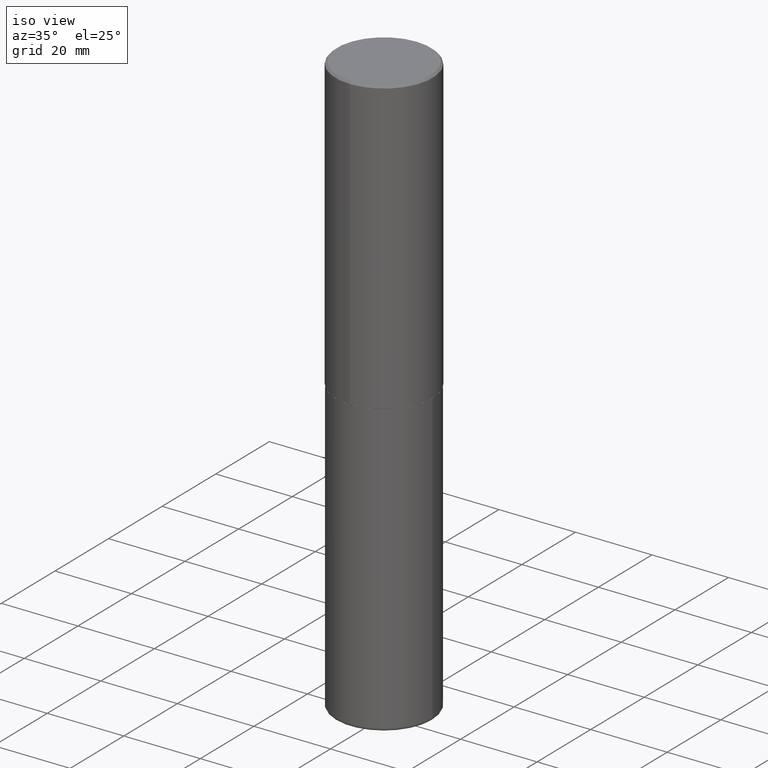
[diagram: clean part render]
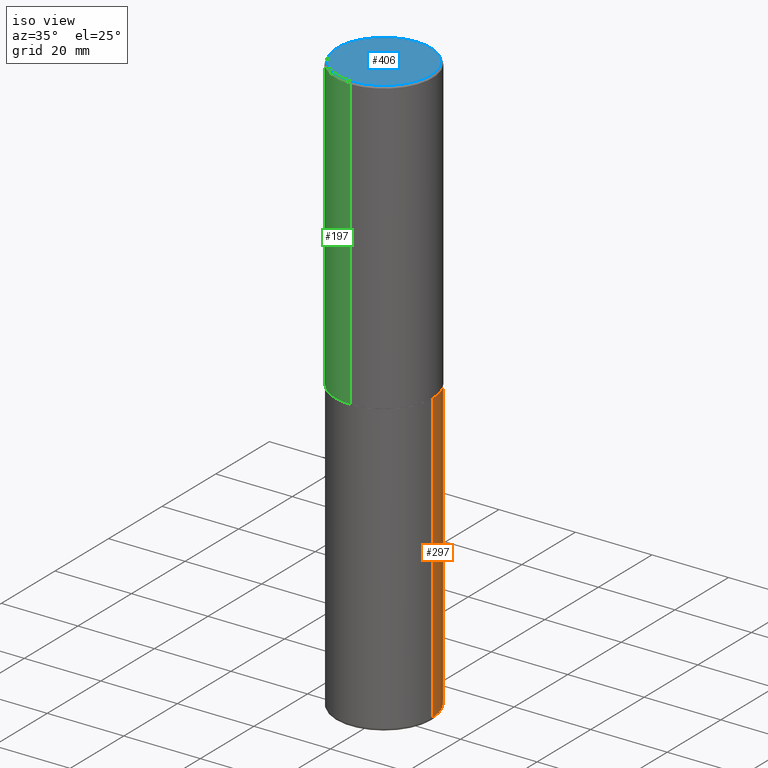
[diagram: same view with three faces highlighted in distinct colors, each labeled with its STEP entity id]
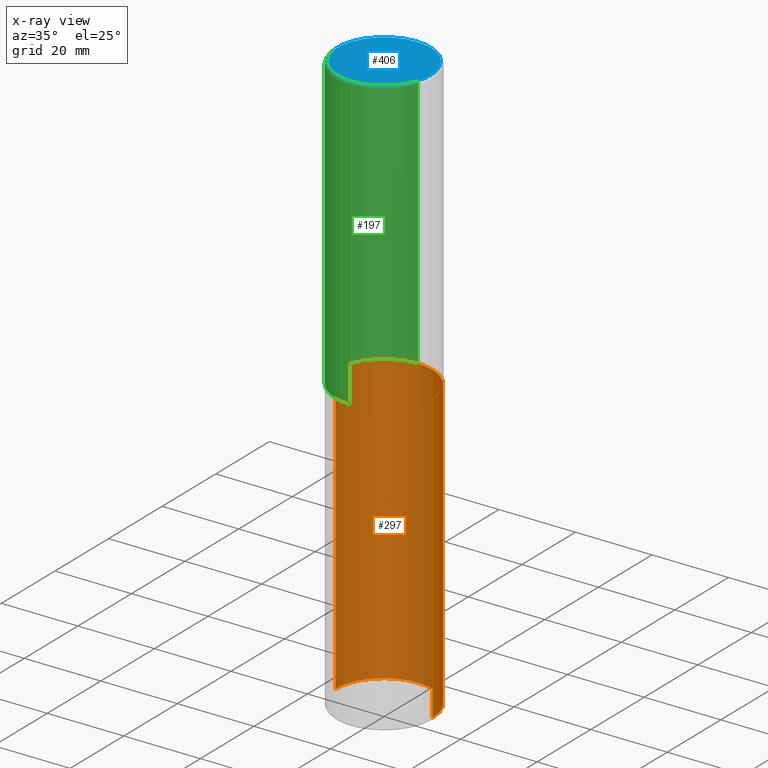
[diagram: x-ray of the same camera — body ghosted, the three highlighted faces saturated]
A machine part, iso view with three faces highlighted in distinct colors.
The next image is the same camera in x-ray (body ghosted, the three faces saturated) — at least one of them is partly hidden behind the body in this view.
Their STEP definitions:

[orange] entity #297 — the highlighted cylindrical surface (partial cylindrical patch) has radius 12.7 mm, axis along (-0, 0, 1).
#11 = CARTESIAN_POINT ( 'NONE',  ( -0.5000000000000000000, 3.552713678800500929E-15, -2.459467545127452891E-29 ) ) ;
#21 = CARTESIAN_POINT ( 'NONE',  ( 0.5000000000000000000, -1.396592535537257129E-14, -3.000000000000000444 ) ) ;
#32 = VERTEX_POINT ( 'NONE', #21 ) ;
#39 = DIRECTION ( 'NONE',  ( -2.445468806185136877E-29, 3.491481338843145188E-15, 1.000000000000000000 ) ) ;
#46 = ORIENTED_EDGE ( 'NONE', *, *, #87, .F. ) ;
#62 = ORIENTED_EDGE ( 'NONE', *, *, #380, .F. ) ;
#75 = CARTESIAN_POINT ( 'NONE',  ( -0.5000000000000000000, -1.210658012591100613E-14, -3.000000000000000444 ) ) ;
#80 = EDGE_LOOP ( 'NONE', ( #362, #119, #62, #46 ) ) ;
#85 = FACE_OUTER_BOUND ( 'NONE', #80, .T. ) ;
#87 = EDGE_CURVE ( 'NONE', #136, #32, #112, .T. ) ;
#107 = DIRECTION ( 'NONE',  ( 1.000000000000000000, -6.982962677686266711E-15, 4.876176775795935793E-29 ) ) ;
#112 = LINE ( 'NONE', #254, #122 ) ;
#114 = CYLINDRICAL_SURFACE ( 'NONE', #231, 0.5000000000000000000 ) ;
#119 = ORIENTED_EDGE ( 'NONE', *, *, #413, .T. ) ;
#122 = VECTOR ( 'NONE', #381, 39.37007874015748143 ) ;
#135 = CARTESIAN_POINT ( 'NONE',  ( 0.5000000000000003331, -2.433562493173670954E-14, -5.969999999999999751 ) ) ;
#136 = VERTEX_POINT ( 'NONE', #135 ) ;
#147 = AXIS2_PLACEMENT_3D ( 'NONE', #395, #337, #196 ) ;
#151 = CARTESIAN_POINT ( 'NONE',  ( -0.5000000000000003331, -1.729142991409307210E-14, -5.969999999999999751 ) ) ;
#173 = CARTESIAN_POINT ( 'NONE',  ( 1.459944877292526494E-28, -2.084414359289357934E-14, -5.969999999999999751 ) ) ;
#182 = CIRCLE ( 'NONE', #147, 0.5000000000000000000 ) ;
#196 = DIRECTION ( 'NONE',  ( 1.000000000000000000, -6.982962677686266711E-15, 0.000000000000000000 ) ) ;
#221 = EDGE_CURVE ( 'NONE', #136, #309, #368, .T. ) ;
#231 = AXIS2_PLACEMENT_3D ( 'NONE', #285, #408, #107 ) ;
#234 = DIRECTION ( 'NONE',  ( 1.000000000000000000, -6.982962677686263555E-15, 0.000000000000000000 ) ) ;
#254 = CARTESIAN_POINT ( 'NONE',  ( 0.5000000000000000000, -3.491481338843133355E-15, 2.438088387897967896E-29 ) ) ;
#267 = VECTOR ( 'NONE', #39, 39.37007874015748143 ) ;
#285 = CARTESIAN_POINT ( 'NONE',  ( 0.000000000000000000, 0.000000000000000000, 0.000000000000000000 ) ) ;
#297 = ADVANCED_FACE ( 'NONE', ( #85 ), #114, .T. ) ;
#309 = VERTEX_POINT ( 'NONE', #151 ) ;
#337 = DIRECTION ( 'NONE',  ( -2.445468806185136597E-29, 3.491481338843145583E-15, 1.000000000000000000 ) ) ;
#344 = DIRECTION ( 'NONE',  ( -2.445468806185136597E-29, 3.491481338843145583E-15, 1.000000000000000000 ) ) ;
#362 = ORIENTED_EDGE ( 'NONE', *, *, #221, .T. ) ;
#368 = CIRCLE ( 'NONE', #411, 0.4999999999999999445 ) ;
#374 = LINE ( 'NONE', #11, #267 ) ;
#380 = EDGE_CURVE ( 'NONE', #32, #392, #182, .T. ) ;
#381 = DIRECTION ( 'NONE',  ( -2.445468806185136877E-29, 3.491481338843145188E-15, 1.000000000000000000 ) ) ;
#392 = VERTEX_POINT ( 'NONE', #75 ) ;
#395 = CARTESIAN_POINT ( 'NONE',  ( 7.336406418555409790E-29, -1.047444401652943635E-14, -3.000000000000000444 ) ) ;
#408 = DIRECTION ( 'NONE',  ( -2.445468806185136597E-29, 3.491481338843145583E-15, 1.000000000000000000 ) ) ;
#411 = AXIS2_PLACEMENT_3D ( 'NONE', #173, #344, #234 ) ;
#413 = EDGE_CURVE ( 'NONE', #309, #392, #374, .T. ) ;

[blue] entity #406 — the highlighted planar face has unit normal (0, -0, -1).
#2 = VERTEX_POINT ( 'NONE', #271 ) ;
#4 = CARTESIAN_POINT ( 'NONE',  ( 3.351822085289407153E-15, 0.4799999999999999267, -1.624885063648019971E-15 ) ) ;
#6 = CIRCLE ( 'NONE', #163, 0.4799999999999999267 ) ;
#29 = DIRECTION ( 'NONE',  ( -2.444898033699712212E-29, 3.492298717528625990E-15, 1.000000000000000000 ) ) ;
#40 = VERTEX_POINT ( 'NONE', #171 ) ;
#59 = CIRCLE ( 'NONE', #108, 0.4799999999999999267 ) ;
#66 = EDGE_LOOP ( 'NONE', ( #339, #235 ) ) ;
#108 = AXIS2_PLACEMENT_3D ( 'NONE', #403, #29, #416 ) ;
#109 = AXIS2_PLACEMENT_3D ( 'NONE', #4, #333, #398 ) ;
#140 = EDGE_CURVE ( 'NONE', #2, #40, #59, .T. ) ;
#152 = CARTESIAN_POINT ( 'NONE',  ( -2.514251026725007597E-45, 3.591362713352002573E-31, 1.028366415314403880E-16 ) ) ;
#163 = AXIS2_PLACEMENT_3D ( 'NONE', #152, #245, #241 ) ;
#171 = CARTESIAN_POINT ( 'NONE',  ( -3.361644018908049661E-15, -0.4799999999999999267, 1.779140025945180744E-15 ) ) ;
#194 = FACE_OUTER_BOUND ( 'NONE', #66, .T. ) ;
#235 = ORIENTED_EDGE ( 'NONE', *, *, #372, .T. ) ;
#241 = DIRECTION ( 'NONE',  ( -6.982962677686265922E-15, -1.000000000000000000, 3.492298717528625990E-15 ) ) ;
#245 = DIRECTION ( 'NONE',  ( -2.444898033699712212E-29, 3.492298717528625990E-15, 1.000000000000000000 ) ) ;
#271 = CARTESIAN_POINT ( 'NONE',  ( 3.421651712066270057E-15, 0.4799999999999999267, -1.573466742882299844E-15 ) ) ;
#273 = PLANE ( 'NONE',  #109 ) ;
#333 = DIRECTION ( 'NONE',  ( 2.444898033699711371E-29, -3.492298717528626385E-15, -1.000000000000000000 ) ) ;
#339 = ORIENTED_EDGE ( 'NONE', *, *, #140, .T. ) ;
#372 = EDGE_CURVE ( 'NONE', #40, #2, #6, .T. ) ;
#398 = DIRECTION ( 'NONE',  ( 6.982962677686265922E-15, 1.000000000000000000, -3.492298717528626385E-15 ) ) ;
#403 = CARTESIAN_POINT ( 'NONE',  ( -2.514251026725007597E-45, 3.591362713352002573E-31, 1.028366415314403880E-16 ) ) ;
#406 = ADVANCED_FACE ( 'NONE', ( #194 ), #273, .F. ) ;
#416 = DIRECTION ( 'NONE',  ( -6.982962677686265922E-15, -1.000000000000000000, 3.492298717528625990E-15 ) ) ;

[green] entity #197 — the highlighted cylindrical surface (partial cylindrical patch) has radius 12.7 mm, axis along (-0, 0, 1).
#8 = VERTEX_POINT ( 'NONE', #396 ) ;
#14 = CARTESIAN_POINT ( 'NONE',  ( 3.491481338843133355E-15, 0.4999999999999999445, -0.02000000000000185310 ) ) ;
#48 = ORIENTED_EDGE ( 'NONE', *, *, #61, .T. ) ;
#58 = DIRECTION ( 'NONE',  ( -6.982962677686265922E-15, -1.000000000000000000, 3.491643216902136408E-15 ) ) ;
#61 = EDGE_CURVE ( 'NONE', #306, #8, #414, .T. ) ;
#69 = CARTESIAN_POINT ( 'NONE',  ( 3.552713678800501718E-15, 0.5000000000000001110, -1.746149358764313390E-15 ) ) ;
#88 = CARTESIAN_POINT ( 'NONE',  ( 4.889796067399450837E-31, -6.984597435057287381E-17, -0.02000000000000010797 ) ) ;
#91 = EDGE_CURVE ( 'NONE', #129, #8, #409, .T. ) ;
#94 = CIRCLE ( 'NONE', #146, 0.5000000000000002220 ) ;
#117 = DIRECTION ( 'NONE',  ( -6.982962677686266711E-15, -1.000000000000000000, 3.278217592397114284E-15 ) ) ;
#121 = CARTESIAN_POINT ( 'NONE',  ( 7.332249203065438921E-29, -1.047340385386834930E-14, -2.999000000000000554 ) ) ;
#126 = CARTESIAN_POINT ( 'NONE',  ( 3.552713678800539584E-15, 0.4999999999999898970, -2.999000000000001886 ) ) ;
#129 = VERTEX_POINT ( 'NONE', #14 ) ;
#144 = DIRECTION ( 'NONE',  ( -2.444898033699712212E-29, 3.492298717528625990E-15, 1.000000000000000000 ) ) ;
#146 = AXIS2_PLACEMENT_3D ( 'NONE', #121, #144, #117 ) ;
#153 = ORIENTED_EDGE ( 'NONE', *, *, #91, .F. ) ;
#154 = EDGE_CURVE ( 'NONE', #327, #306, #94, .T. ) ;
#162 = DIRECTION ( 'NONE',  ( -6.982962677686265922E-15, -1.000000000000000000, 3.492298717528625990E-15 ) ) ;
#164 = DIRECTION ( 'NONE',  ( -2.444898033699711931E-29, 3.492298717528626385E-15, 1.000000000000000000 ) ) ;
#197 = ADVANCED_FACE ( 'NONE', ( #363 ), #272, .T. ) ;
#202 = AXIS2_PLACEMENT_3D ( 'NONE', #336, #340, #162 ) ;
#207 = LINE ( 'NONE', #69, #250 ) ;
#216 = DIRECTION ( 'NONE',  ( -2.444898033699712212E-29, 3.492298717528625990E-15, 1.000000000000000000 ) ) ;
#250 = VECTOR ( 'NONE', #164, 39.37007874015748143 ) ;
#268 = ORIENTED_EDGE ( 'NONE', *, *, #154, .T. ) ;
#272 = CYLINDRICAL_SURFACE ( 'NONE', #202, 0.5000000000000001110 ) ;
#277 = VECTOR ( 'NONE', #280, 39.37007874015748143 ) ;
#280 = DIRECTION ( 'NONE',  ( -2.444898033699711931E-29, 3.492298717528626385E-15, 1.000000000000000000 ) ) ;
#291 = CARTESIAN_POINT ( 'NONE',  ( -3.491481338843061569E-15, -0.5000000000000107692, -2.998999999999998778 ) ) ;
#295 = AXIS2_PLACEMENT_3D ( 'NONE', #88, #216, #58 ) ;
#300 = ORIENTED_EDGE ( 'NONE', *, *, #320, .F. ) ;
#306 = VERTEX_POINT ( 'NONE', #291 ) ;
#320 = EDGE_CURVE ( 'NONE', #327, #129, #207, .T. ) ;
#327 = VERTEX_POINT ( 'NONE', #126 ) ;
#336 = CARTESIAN_POINT ( 'NONE',  ( 0.000000000000000000, 0.000000000000000000, 0.000000000000000000 ) ) ;
#340 = DIRECTION ( 'NONE',  ( -2.444898033699712212E-29, 3.492298717528625990E-15, 1.000000000000000000 ) ) ;
#342 = CARTESIAN_POINT ( 'NONE',  ( -3.491481338843133750E-15, -0.5000000000000001110, 1.746149358764313390E-15 ) ) ;
#363 = FACE_OUTER_BOUND ( 'NONE', #367, .T. ) ;
#367 = EDGE_LOOP ( 'NONE', ( #300, #268, #48, #153 ) ) ;
#396 = CARTESIAN_POINT ( 'NONE',  ( -3.430248998885764992E-15, -0.5000000000000001110, -0.01999999999999835937 ) ) ;
#409 = CIRCLE ( 'NONE', #295, 0.5000000000000000000 ) ;
#414 = LINE ( 'NONE', #342, #277 ) ;